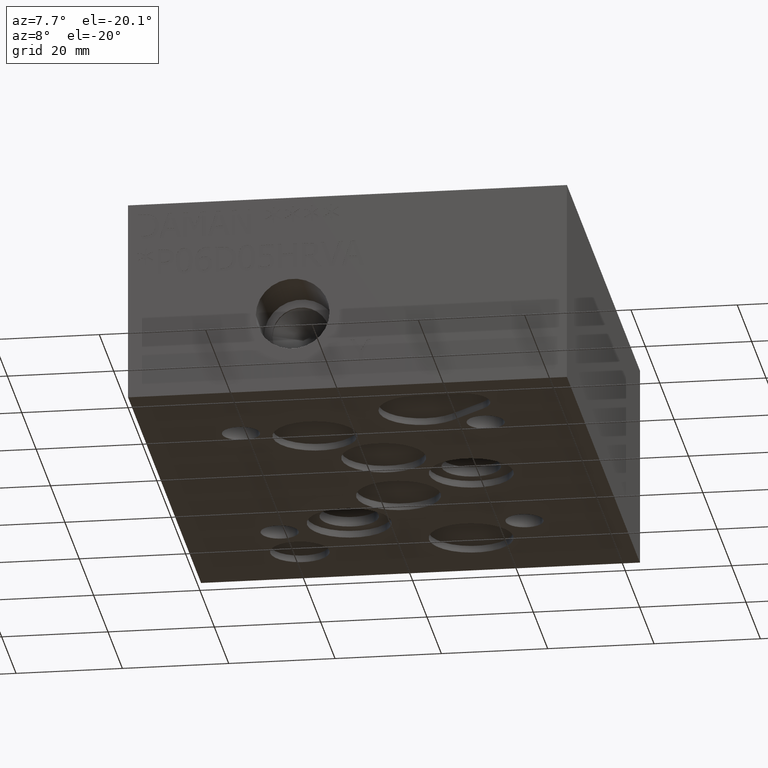
[diagram: clean part render]
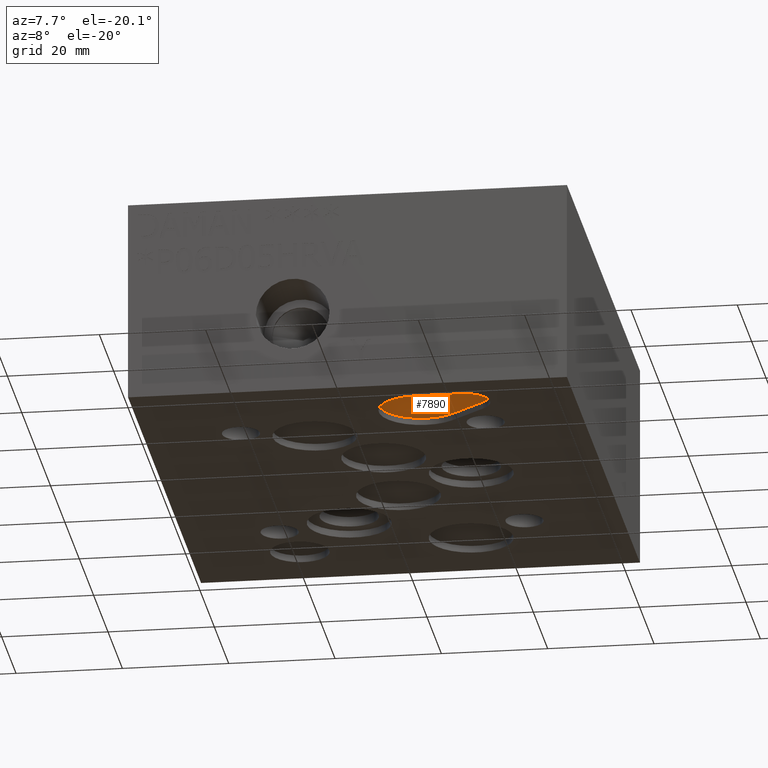
[diagram: same view with one face highlighted and labeled with its STEP entity id]
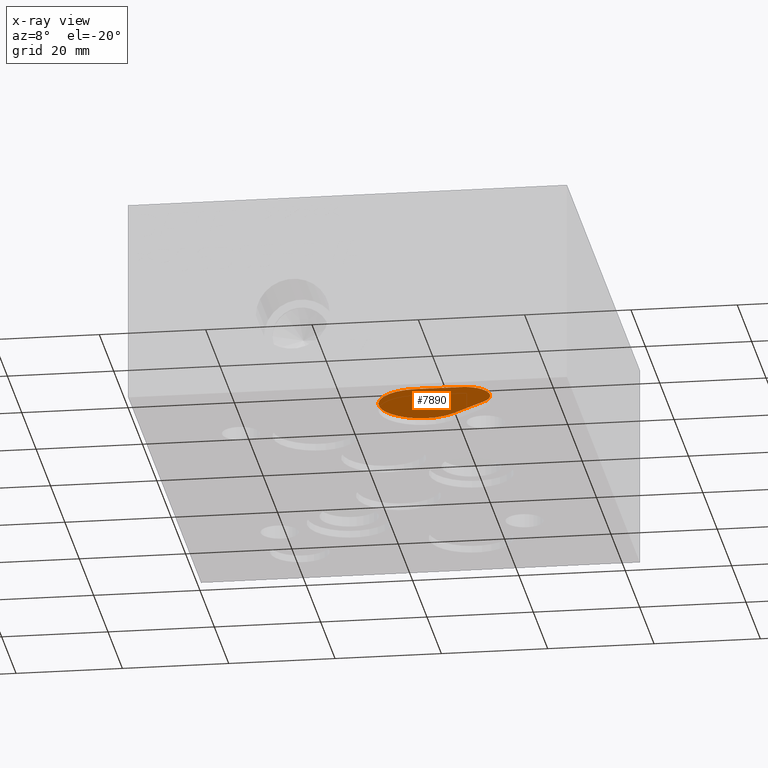
[diagram: x-ray of the same camera — body ghosted, the highlighted face saturated]
A machine part, auxiliary view. The second image highlights one B-rep face of the part: STEP entity #7890.
The next image is the same camera in x-ray: the body ghosted, the highlighted face saturated — about 0% of this face is hidden behind the body in this view.
In plain terms, the highlighted planar face has unit normal (0, 0, -1).
Its self-contained STEP definition (entity closure, byte-faithful):
#677=CIRCLE('',#7938,4.7625);
#698=CIRCLE('',#7962,7.9375);
#1193=FACE_OUTER_BOUND('',#1645,.T.);
#1645=EDGE_LOOP('',(#7086,#7087,#7088,#7089));
#1694=LINE('',#10020,#2485);
#1699=LINE('',#10033,#2490);
#2485=VECTOR('',#8369,10.);
#2490=VECTOR('',#8382,10.);
#3276=VERTEX_POINT('',#10017);
#3277=VERTEX_POINT('',#10019);
#3279=VERTEX_POINT('',#10025);
#3281=VERTEX_POINT('',#10031);
#4015=EDGE_CURVE('',#3276,#3277,#1694,.T.);
#4019=EDGE_CURVE('',#3279,#3276,#677,.T.);
#4022=EDGE_CURVE('',#3281,#3279,#1699,.T.);
#4047=EDGE_CURVE('',#3281,#3277,#698,.T.);
#7086=ORIENTED_EDGE('',*,*,#4047,.T.);
#7087=ORIENTED_EDGE('',*,*,#4015,.F.);
#7088=ORIENTED_EDGE('',*,*,#4019,.F.);
#7089=ORIENTED_EDGE('',*,*,#4022,.F.);
#7510=PLANE('',#8288);
#7890=ADVANCED_FACE('',(#1193),#7510,.T.);
#7938=AXIS2_PLACEMENT_3D('',#10027,#8376,#8377);
#7962=AXIS2_PLACEMENT_3D('',#10083,#8431,#8432);
#8288=AXIS2_PLACEMENT_3D('',#13208,#9836,#9837);
#8369=DIRECTION('',(-0.76329216727523,0.6460534555099,0.));
#8376=DIRECTION('center_axis',(0.,0.,1.));
#8377=DIRECTION('ref_axis',(-1.,0.,0.));
#8382=DIRECTION('',(0.999997583586605,0.00219836779237101,0.));
#8431=DIRECTION('center_axis',(0.,0.,-1.));
#8432=DIRECTION('ref_axis',(1.,0.,0.));
#9836=DIRECTION('center_axis',(0.,0.,-1.));
#9837=DIRECTION('ref_axis',(1.,0.,0.));
#10017=CARTESIAN_POINT('',(64.6993487949256,14.9214448707221,1.3208));
#10019=CARTESIAN_POINT('',(58.2902493031098,20.3461315777471,1.3208));
#10020=CARTESIAN_POINT('',(58.2284974797478,20.3983985609254,1.3208));
#10025=CARTESIAN_POINT('',(61.5885891111354,6.36850197173343,1.3208));
#10027=CARTESIAN_POINT('Origin',(61.8236,11.1252,1.3208));
#10031=CARTESIAN_POINT('',(53.179649547864,6.35001758272439,1.3208));
#10033=CARTESIAN_POINT('',(62.0795225102835,6.36958122651424,1.3208));
#10083=CARTESIAN_POINT('Origin',(53.1622,14.2875,1.3208));
#13208=CARTESIAN_POINT('Origin',(53.1622,14.2875,1.3208));